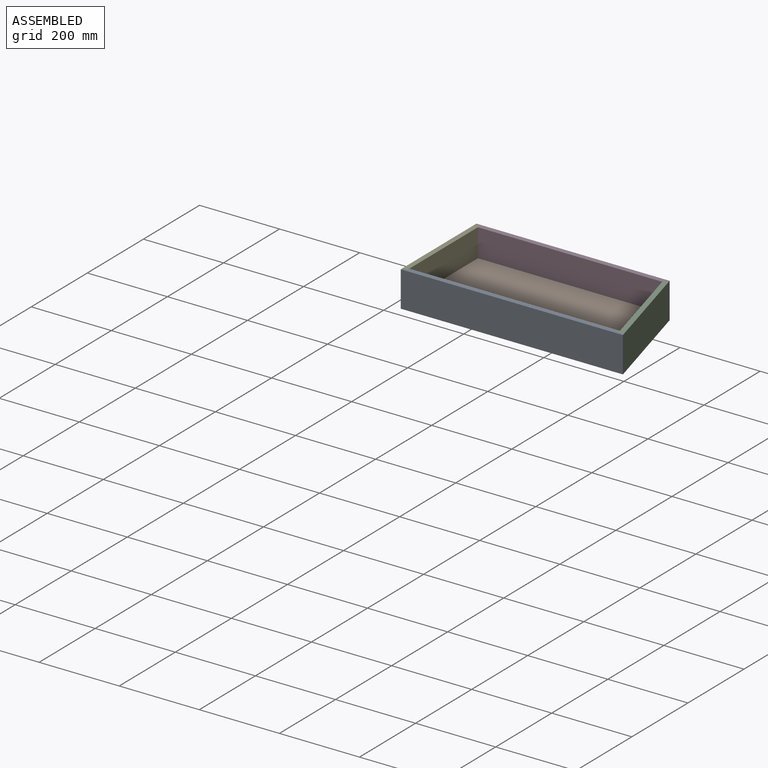
[diagram: assembled view]
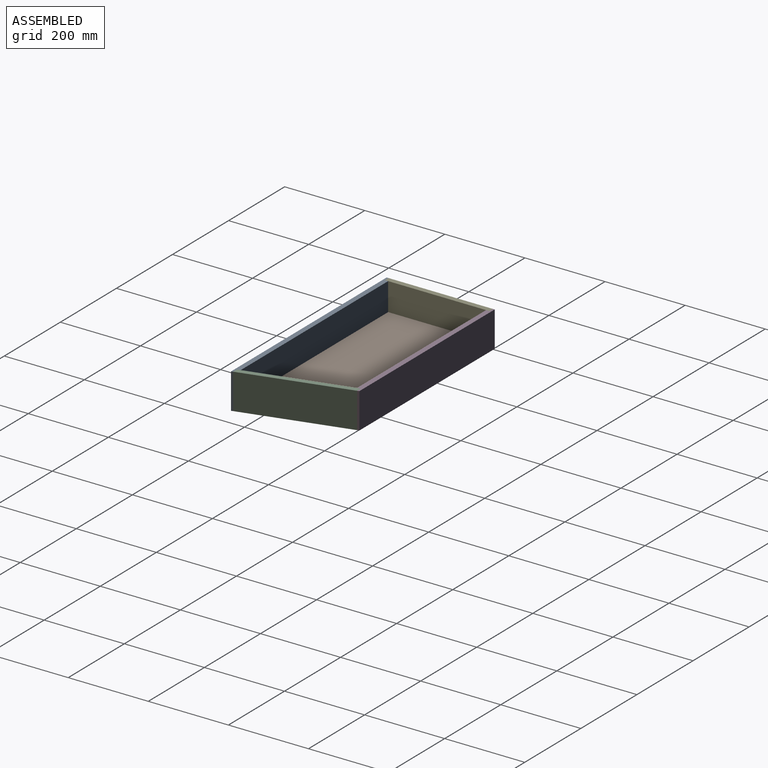
[diagram: assembled view, second angle]
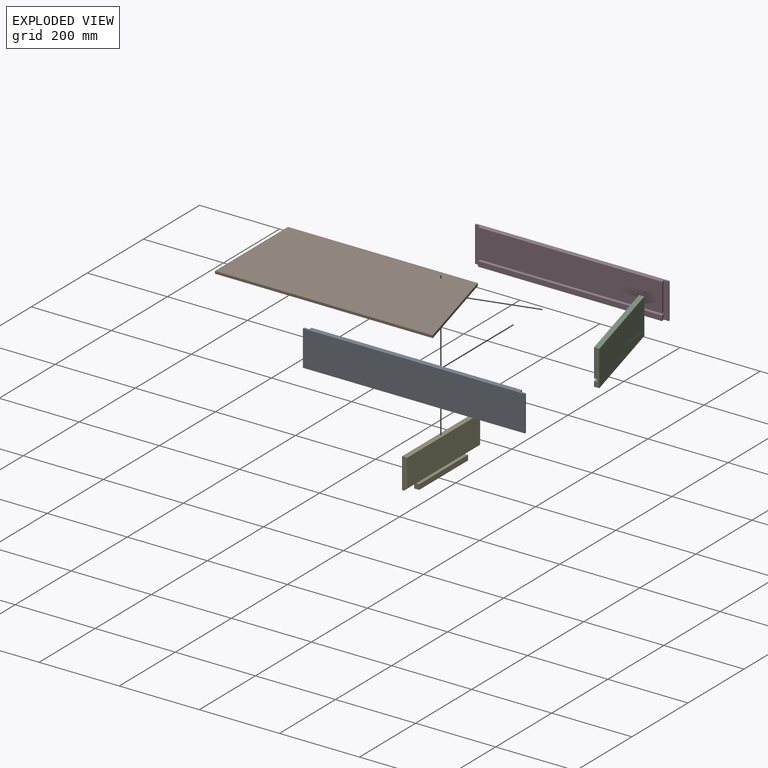
[diagram: exploded view]
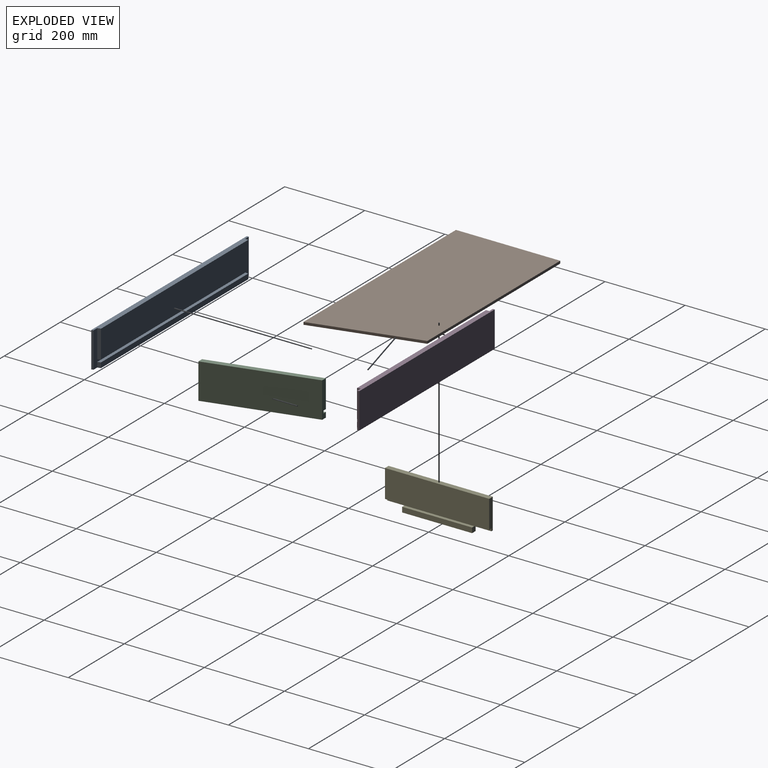
[diagram: exploded view, second angle]
ASSEMBLY  parts=5 mates=4
PART A: 14 faces, bbox 554.9x12.7x88.9 mm
  f0: plane 88.9x4.76mm, normal (-1,0,0), area 423.4mm2, adj f1,f3,f7,f12
  f1: plane 554.91x88.9mm, normal (0,-1,0), area 49331.8mm2, adj f0,f2,f7,f12
  f2: plane 88.9x4.76mm, normal (0.97,0.26,0), area 438.3mm2, adj f1,f3,f7,f12
  f3: plane 553.64x88.9mm, normal (0,1,0), area 5649.4mm2, adj f0,f2,f4,f6,f7,f8,f9,f11
  f4: plane 69.85x7.94mm, normal (0.97,0.26,0), area 574mm2, adj f3,f5,f7,f8
  f5: plane 525.66x69.85mm, normal (0,1,0), area 36717.5mm2, adj f4,f6,f7,f8
  f6: plane 69.85x7.94mm, normal (-1,0,0), area 554.4mm2, adj f3,f5,f7,f8
  f7: plane 554.91x12.7mm, normal (0,0,1), area 6820.6mm2, adj f0,f1,f2,f3,f4,f5,f6
  f8: plane 527.79x7.94mm, normal (0,0,-1), area 4180.9mm2, adj f3,f4,f5,f6
  f9: plane 12.7x7.94mm, normal (0.97,0.26,0), area 104.4mm2, adj f3,f10,f12,f13
  f10: plane 525.66x12.7mm, normal (0,1,0), area 6675.9mm2, adj f9,f11,f12,f13
  f11: plane 12.7x7.94mm, normal (-1,0,0), area 100.8mm2, adj f3,f10,f12,f13
  f12: plane 554.91x12.7mm, normal (0,0,-1), area 6820.6mm2, adj f0,f1,f2,f3,f9,f10,f11
  f13: plane 527.79x7.94mm, normal (0,0,1), area 4180.9mm2, adj f3,f9,f10,f11
PART B: 6 faces, bbox 543.9x260.4x6.4 mm
  f0: plane 474.17x6.35mm, normal (0,1,0), area 3011mm2, adj f1,f3,f4,f5
  f1: plane 260.35x6.35mm, normal (-1,0,0), area 1653.2mm2, adj f0,f2,f4,f5
  f2: plane 543.94x6.35mm, normal (0,-1,0), area 3454mm2, adj f1,f3,f4,f5
  f3: plane 260.35x69.76mm, normal (0.97,0.26,0), area 1711.5mm2, adj f0,f2,f4,f5
  f4: plane 543.94x260.35mm, normal (0,0,1), area 132532.4mm2, adj f0,f1,f2,f3
  f5: plane 543.94x260.35mm, normal (0,0,-1), area 132532.4mm2, adj f0,f1,f2,f3
PART C: 10 faces, bbox 82.9x260.4x88.9 mm
  f0: plane 260.35x69.85mm, normal (0.97,0.26,0), area 18827mm2, adj f1,f3,f4,f6
  f1: plane 88.9x13.15mm, normal (0,1,0), area 1116.7mm2, adj f0,f2,f4,f5,f6,f7,f8,f9
  f2: plane 260.35x88.9mm, normal (-0.97,-0.26,0), area 23961.6mm2, adj f1,f3,f4,f9
  f3: plane 88.9x13.15mm, normal (0,-1,0), area 1116.7mm2, adj f0,f2,f4,f5,f6,f7,f8,f9
  f4: plane 260.35x82.91mm, normal (0,0,1), area 3423.1mm2, adj f0,f1,f2,f3
  f5: plane 260.35x69.76mm, normal (0.97,0.26,0), area 1711.5mm2, adj f1,f3,f6,f7
  f6: plane 260.35x77.98mm, normal (0,0,-1), area 2139.4mm2, adj f0,f1,f3,f5
  f7: plane 260.35x77.98mm, normal (0,0,1), area 2139.4mm2, adj f1,f3,f5,f8
  f8: plane 260.35x69.76mm, normal (0.97,0.26,0), area 3423.1mm2, adj f1,f3,f7,f9
  f9: plane 260.35x82.91mm, normal (0,0,-1), area 3423.1mm2, adj f1,f2,f3,f8
PART D: 14 faces, bbox 483.9x12.7x88.9 mm
  f0: plane 88.9x4.76mm, normal (0.97,0.26,0), area 438.3mm2, adj f1,f3,f7,f12
  f1: plane 482.6x88.9mm, normal (0,1,0), area 42903.1mm2, adj f0,f2,f7,f12
  f2: plane 88.9x4.76mm, normal (-1,0,0), area 423.4mm2, adj f1,f3,f7,f12
  f3: plane 483.88x88.9mm, normal (0,-1,0), area 5206.4mm2, adj f0,f2,f4,f6,f7,f8,f9,f11
  f4: plane 69.85x7.94mm, normal (-1,0,0), area 554.4mm2, adj f3,f5,f7,f8
  f5: plane 460.16x69.85mm, normal (0,-1,0), area 32141.9mm2, adj f4,f6,f7,f8
  f6: plane 69.85x7.94mm, normal (0.97,0.26,0), area 574mm2, adj f3,f5,f7,f8
  f7: plane 483.88x12.7mm, normal (0,0,1), area 5945.5mm2, adj f0,f1,f2,f3,f4,f5,f6
  f8: plane 460.16x7.94mm, normal (0,0,-1), area 3644mm2, adj f3,f4,f5,f6
  f9: plane 12.7x7.94mm, normal (-1,0,0), area 100.8mm2, adj f3,f10,f12,f13
  f10: plane 460.16x12.7mm, normal (0,-1,0), area 5844mm2, adj f9,f11,f12,f13
  f11: plane 12.7x7.94mm, normal (0.97,0.26,0), area 104.4mm2, adj f3,f10,f12,f13
  f12: plane 483.88x12.7mm, normal (0,0,-1), area 5945.5mm2, adj f0,f1,f2,f3,f9,f10,f11
  f13: plane 460.16x7.94mm, normal (0,0,1), area 3644mm2, adj f3,f9,f10,f11
PART E: 14 faces, bbox 12.7x260.4x88.9 mm
  f0: plane 42.86x4.76mm, normal (0,0,-1), area 204.1mm2, adj f1,f3,f8,f13
  f1: plane 260.35x6.35mm, normal (-1,0,0), area 1653.2mm2, adj f0,f2,f6,f7,f8,f9
  f2: plane 42.86x4.76mm, normal (0,0,-1), area 204.1mm2, adj f1,f3,f7,f12
  f3: plane 260.35x88.9mm, normal (1,0,0), area 22056.4mm2, adj f0,f2,f4,f7,f8,f11,f12,f13
  f4: plane 260.35x12.7mm, normal (0,0,1), area 3306.4mm2, adj f3,f5,f7,f8
  f5: plane 260.35x69.85mm, normal (-1,0,0), area 18185.4mm2, adj f4,f6,f7,f8
  f6: plane 260.35x7.94mm, normal (0,0,-1), area 2066.5mm2, adj f1,f5,f7,f8
  f7: plane 76.2x12.7mm, normal (0,-1,0), area 917.3mm2, adj f1,f2,f3,f4,f5,f6
  f8: plane 76.2x12.7mm, normal (0,1,0), area 917.3mm2, adj f0,f1,f3,f4,f5,f6
  f9: plane 174.63x7.94mm, normal (0,0,1), area 1386.1mm2, adj f1,f10,f12,f13
  f10: plane 174.63x12.7mm, normal (-1,0,0), area 2217.7mm2, adj f9,f11,f12,f13
  f11: plane 174.63x12.7mm, normal (0,0,-1), area 2217.7mm2, adj f3,f10,f12,f13
  f12: plane 12.7x12.7mm, normal (0,-1,0), area 161.3mm2, adj f2,f3,f9,f10,f11
  f13: plane 12.7x12.7mm, normal (0,1,0), area 161.3mm2, adj f0,f3,f9,f10,f11
PLACE A rot(axis=(0.02,0.02,-1),0deg) t=(34.67,-128.59,0)mm
PLACE B at identity
PLACE C rot(axis=(0,0,1),180deg) t=(270.93,0.41,0)mm
PLACE D rot(axis=(0.01,0.02,-1),0deg) t=(-1.48,128.59,0)mm
PLACE E rot(axis=(0,0,-1),180deg) t=(-236.42,0,31.75)mm
MATE fastened C.f5 <-> B.f3  axis (-0.97,-0.26,0) through (271.04,0,3.18)mm
MATE fastened D.f3 <-> C.f3  axis (0,-1,0) through (241.09,130.17,76.2)mm
MATE fastened A.f3 <-> C.f1  axis (0,1,0) through (310.85,-130.18,76.2)mm
MATE fastened E.f1 <-> B.f1  axis (1,0,0) through (-238.01,0,3.18)mm
